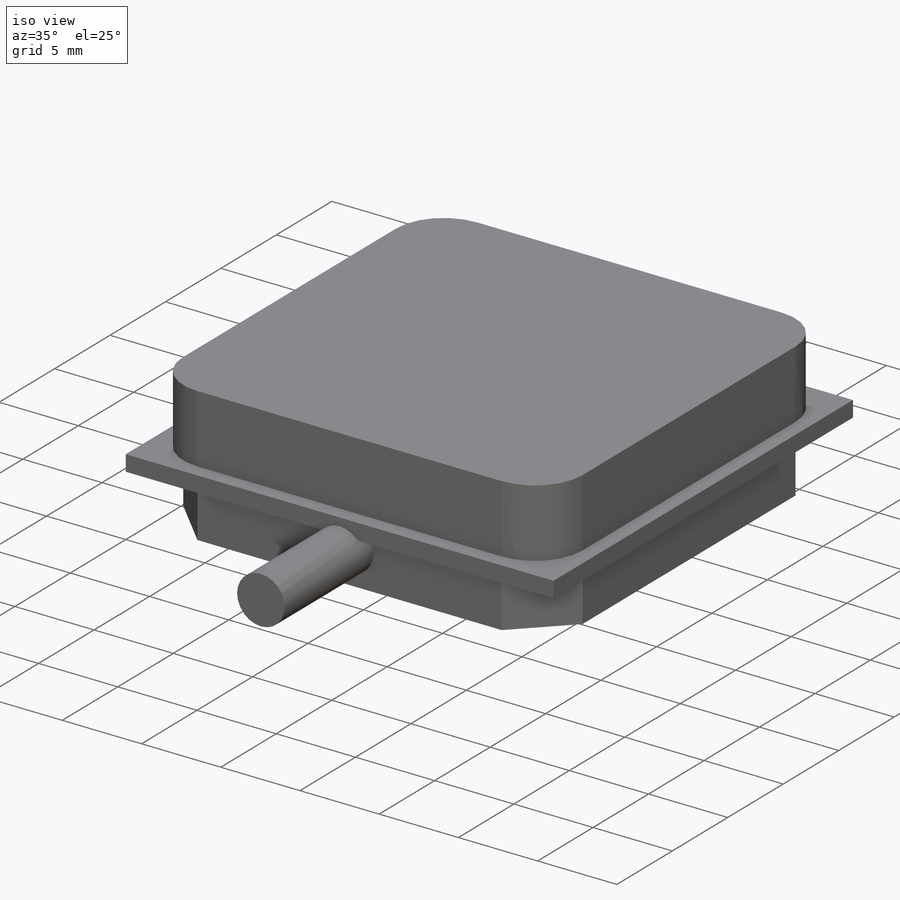
[diagram: iso view]
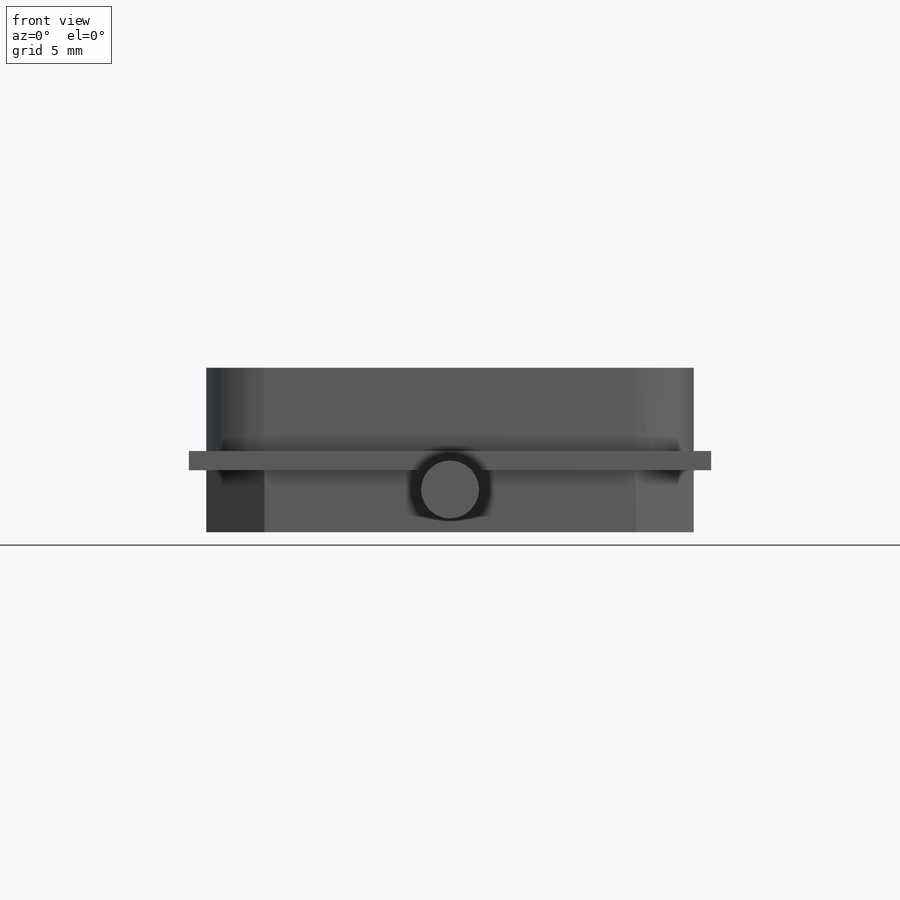
[diagram: front view]
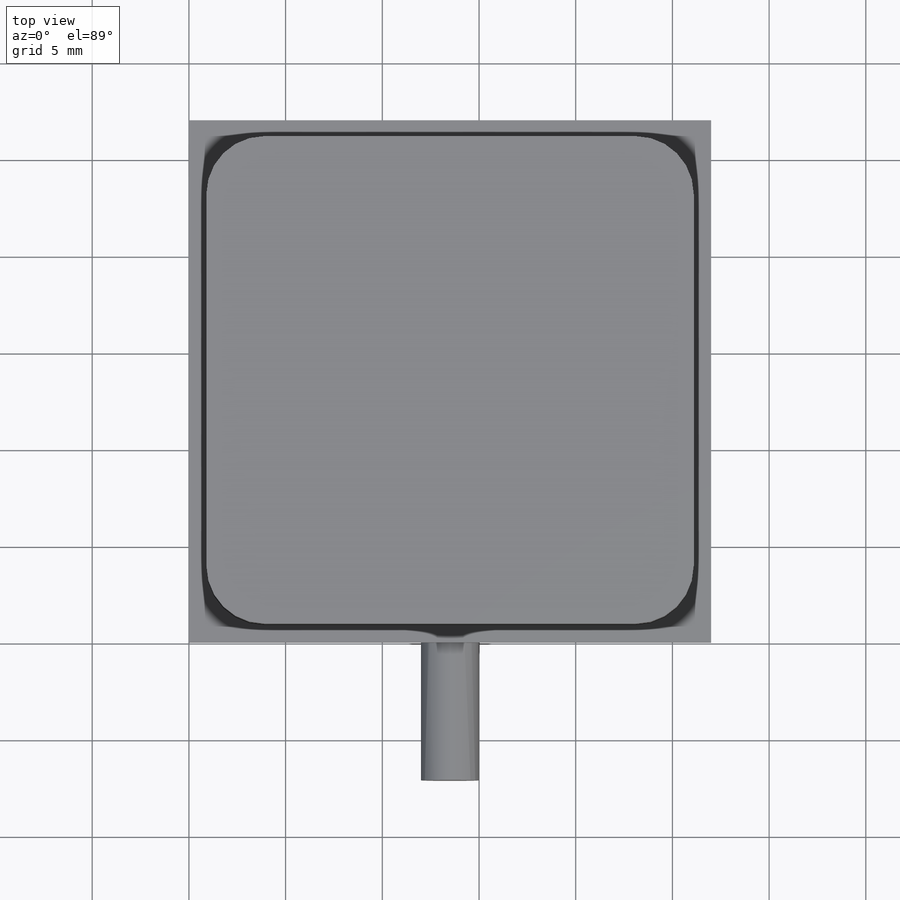
[diagram: top view]
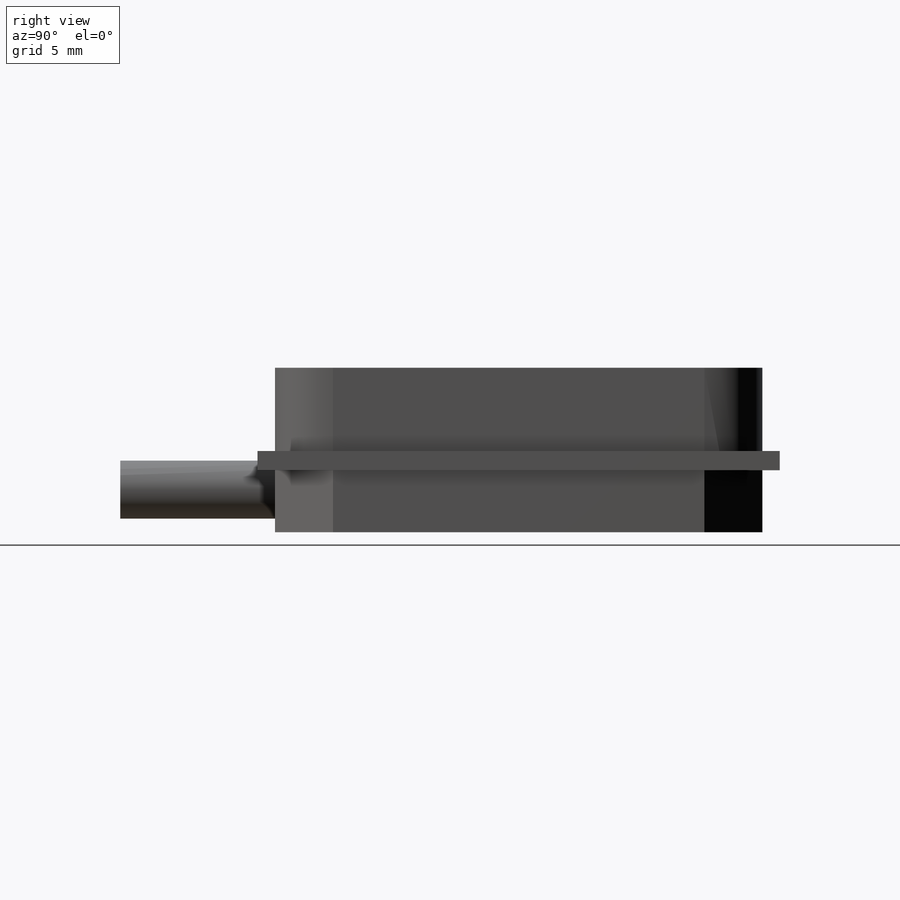
[diagram: right view]
SOLIDWORKS PART (.sldprt)
format: sldprt  version: not decoded by parser v0  size: 211,968 bytes
history: native  units: mm
features: sketch x4, extrude x4, material x1 (+11 scaffold rows collapsed)
feature tree (20):
  scaffold x11  (default folders/planes/origin — collapsed)
  material  "Material <not specified>"
  sketch  "Sketch1"  dims[D1=27.0mm D2=27.0mm]
  extrude  "Boss-Extrude1"  Depth=1mm
  sketch  "Sketch2"  dims[D5=3.0mm D1=25.2mm D2=25.2mm D3=0.9mm D4=0.9mm]
  extrude  "Boss-Extrude2"  Depth=4.3mm
  sketch  "Sketch3"  dims[D1=25.2mm D2=25.2mm D3=0.9mm D4=0.9mm]
  extrude  "Boss-Extrude3"  Depth=3.2mm
  sketch  "Sketch4"  dims[D1=3.0mm D2=1.0mm D3=13.5mm]
  extrude  "Boss-Extrude5"  Depth=8mm
decode coverage: 8 of 8 modeling features carry decoded parameters
note: suppression state not decoded; provenance and decode notes live in map.json
